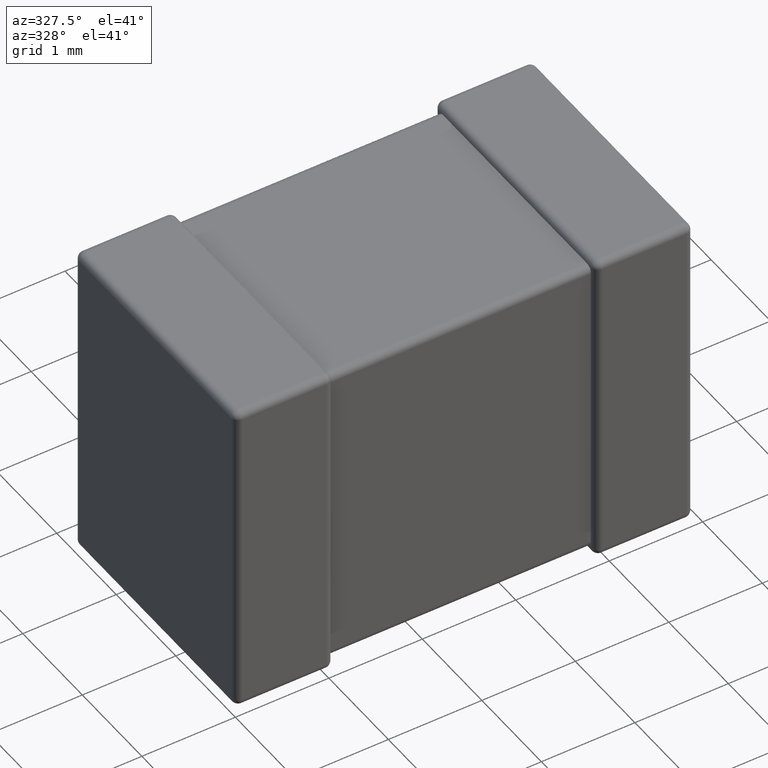
[diagram: clean part render]
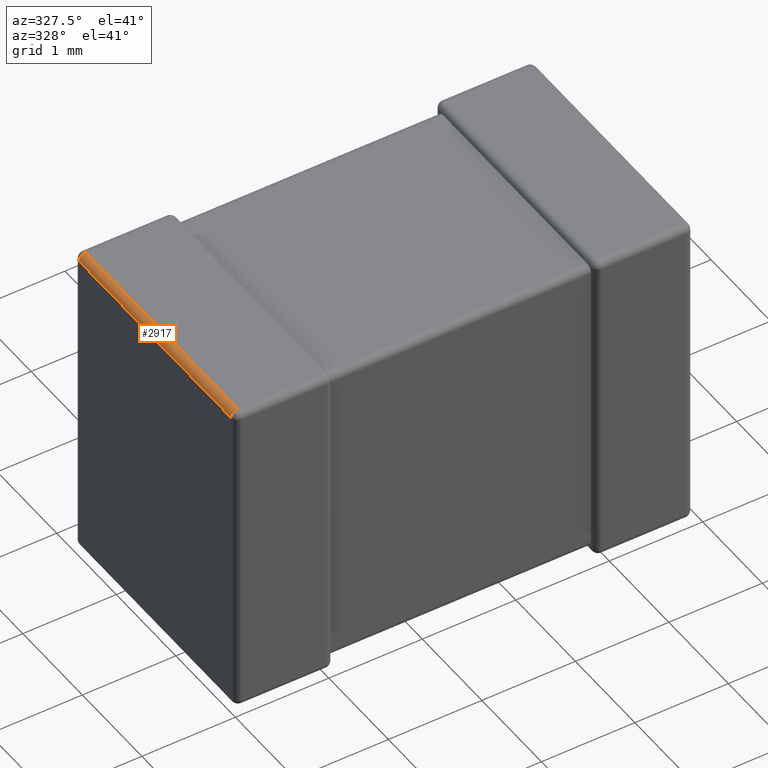
[diagram: same view with one face highlighted and labeled with its STEP entity id]
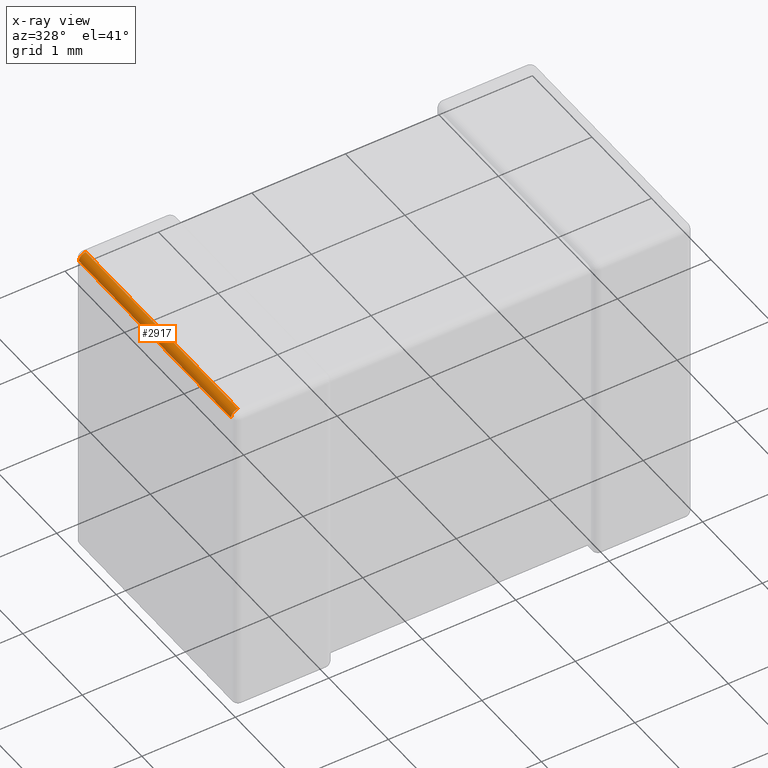
[diagram: x-ray of the same camera — body ghosted, the highlighted face saturated]
A machine part, auxiliary view. The second image highlights one B-rep face of the part: STEP entity #2917.
The next image is the same camera in x-ray: the body ghosted, the highlighted face saturated — about 0% of this face is hidden behind the body in this view.
In plain terms, the highlighted cylindrical surface (edge-blend (fillet) strip) has radius 0.0728 mm, axis along (0, 1, 0).
Its self-contained STEP definition (entity closure, byte-faithful):
#10 = EDGE_CURVE ( 'NONE', #4548, #550, #895, .T. ) ;
#79 = CARTESIAN_POINT ( 'NONE',  ( 0.07280000000000000360, 2.627200000000000202, -0.07280000000000000360 ) ) ;
#502 = DIRECTION ( 'NONE',  ( -5.398671531950485747E-15, 0.000000000000000000, 1.000000000000000000 ) ) ;
#550 = VERTEX_POINT ( 'NONE', #3613 ) ;
#558 = CARTESIAN_POINT ( 'NONE',  ( 0.07279999999999960114, 0.07280000000000000360, -0.07280000000000000360 ) ) ;
#648 = EDGE_CURVE ( 'NONE', #1874, #4548, #1598, .T. ) ;
#872 = CARTESIAN_POINT ( 'NONE',  ( 0.07279999999999960114, 0.000000000000000000, -0.07280000000000000360 ) ) ;
#895 = LINE ( 'NONE', #4058, #1248 ) ;
#987 = DIRECTION ( 'NONE',  ( 0.000000000000000000, -1.000000000000000000, 0.000000000000000000 ) ) ;
#1158 = CYLINDRICAL_SURFACE ( 'NONE', #1706, 0.07280000000000000360 ) ;
#1173 = EDGE_LOOP ( 'NONE', ( #1472, #1239, #2959, #1916 ) ) ;
#1200 = AXIS2_PLACEMENT_3D ( 'NONE', #79, #1206, #502 ) ;
#1206 = DIRECTION ( 'NONE',  ( -0.000000000000000000, -1.000000000000000000, -0.000000000000000000 ) ) ;
#1239 = ORIENTED_EDGE ( 'NONE', *, *, #10, .F. ) ;
#1248 = VECTOR ( 'NONE', #3742, 1000.000000000000000 ) ;
#1432 = CARTESIAN_POINT ( 'NONE',  ( 0.000000000000000000, 0.07280000000000000360, -0.07280000000000000360 ) ) ;
#1472 = ORIENTED_EDGE ( 'NONE', *, *, #1521, .T. ) ;
#1521 = EDGE_CURVE ( 'NONE', #1726, #550, #2798, .T. ) ;
#1598 = CIRCLE ( 'NONE', #2465, 0.07280000000000000360 ) ;
#1706 = AXIS2_PLACEMENT_3D ( 'NONE', #872, #3626, #3581 ) ;
#1726 = VERTEX_POINT ( 'NONE', #3263 ) ;
#1855 = FACE_OUTER_BOUND ( 'NONE', #1173, .T. ) ;
#1874 = VERTEX_POINT ( 'NONE', #3330 ) ;
#1916 = ORIENTED_EDGE ( 'NONE', *, *, #3084, .F. ) ;
#1949 = DIRECTION ( 'NONE',  ( 0.000000000000000000, -1.000000000000000000, 0.000000000000000000 ) ) ;
#2465 = AXIS2_PLACEMENT_3D ( 'NONE', #558, #1949, #3705 ) ;
#2654 = VECTOR ( 'NONE', #987, 1000.000000000000000 ) ;
#2713 = CARTESIAN_POINT ( 'NONE',  ( 0.07279999999999960114, 0.000000000000000000, 0.000000000000000000 ) ) ;
#2798 = CIRCLE ( 'NONE', #1200, 0.07280000000000000360 ) ;
#2917 = ADVANCED_FACE ( 'NONE', ( #1855 ), #1158, .T. ) ;
#2959 = ORIENTED_EDGE ( 'NONE', *, *, #648, .F. ) ;
#3084 = EDGE_CURVE ( 'NONE', #1726, #1874, #4116, .T. ) ;
#3263 = CARTESIAN_POINT ( 'NONE',  ( 0.07279999999999960114, 2.627200000000000202, 0.000000000000000000 ) ) ;
#3330 = CARTESIAN_POINT ( 'NONE',  ( 0.07279999999999960114, 0.07280000000000000360, 0.000000000000000000 ) ) ;
#3581 = DIRECTION ( 'NONE',  ( 0.000000000000000000, 0.000000000000000000, 1.000000000000000000 ) ) ;
#3613 = CARTESIAN_POINT ( 'NONE',  ( 0.000000000000000000, 2.627200000000000202, -0.07280000000000000360 ) ) ;
#3626 = DIRECTION ( 'NONE',  ( 0.000000000000000000, 1.000000000000000000, 0.000000000000000000 ) ) ;
#3705 = DIRECTION ( 'NONE',  ( 0.000000000000000000, 0.000000000000000000, -1.000000000000000000 ) ) ;
#3742 = DIRECTION ( 'NONE',  ( -0.000000000000000000, 1.000000000000000000, -0.000000000000000000 ) ) ;
#4058 = CARTESIAN_POINT ( 'NONE',  ( 0.000000000000000000, 2.700000000000000178, -0.07280000000000000360 ) ) ;
#4116 = LINE ( 'NONE', #2713, #2654 ) ;
#4548 = VERTEX_POINT ( 'NONE', #1432 ) ;